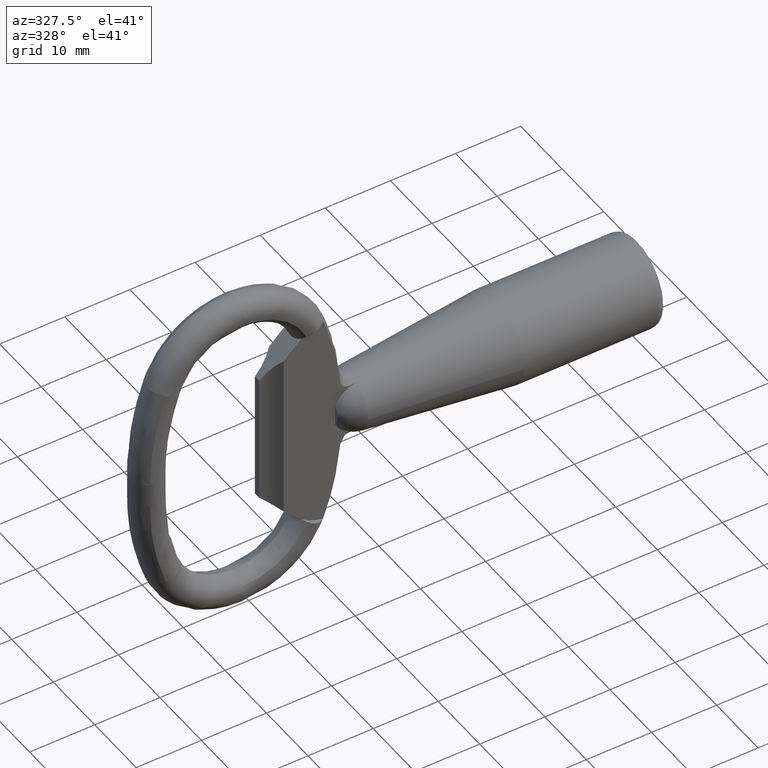
[diagram: clean part render]
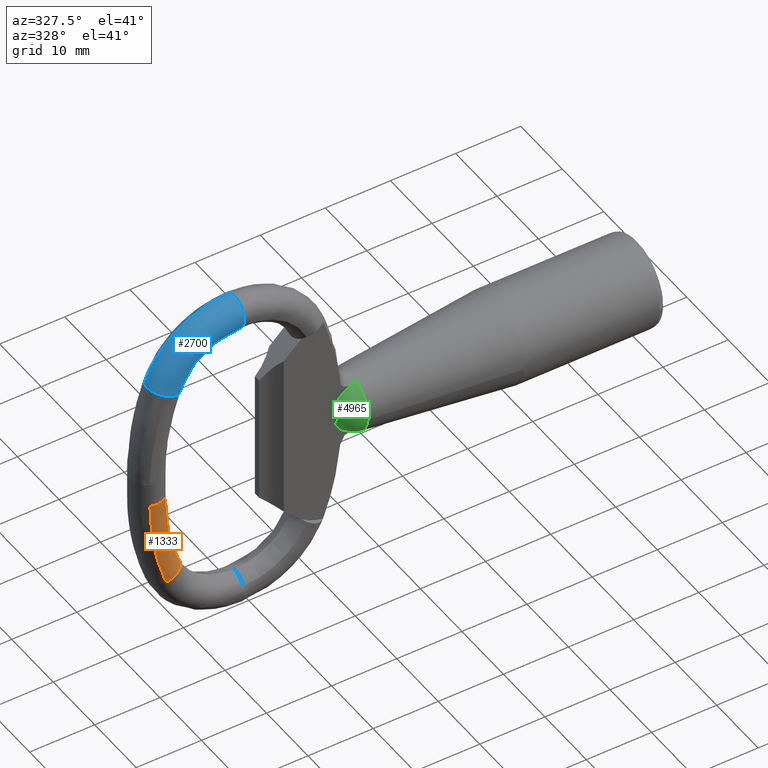
[diagram: same view with three faces highlighted in distinct colors, each labeled with its STEP entity id]
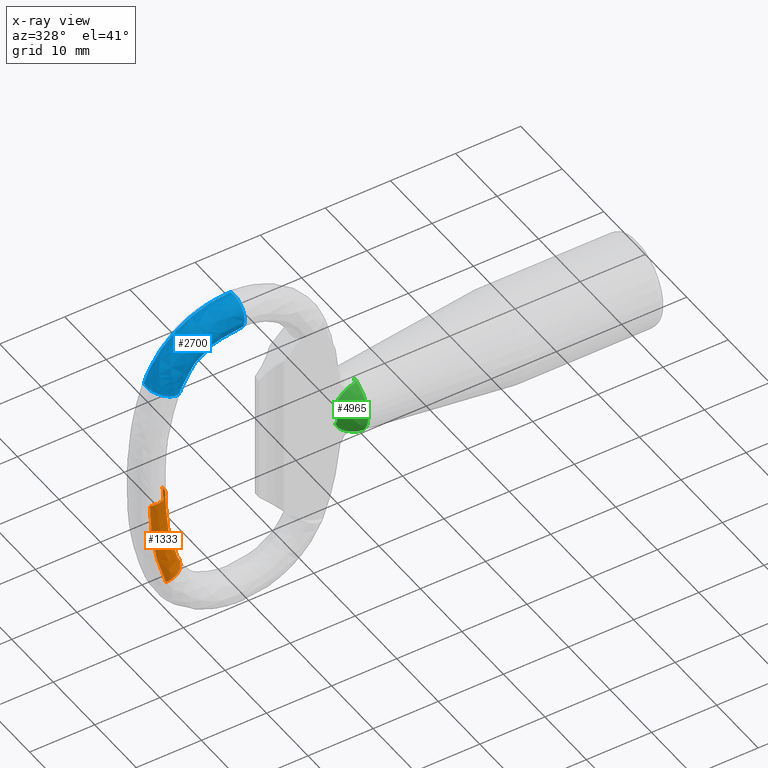
[diagram: x-ray of the same camera — body ghosted, the three highlighted faces saturated]
A machine part, auxiliary view with three faces highlighted in distinct colors.
The next image is the same camera in x-ray (body ghosted, the three faces saturated) — at least one of them is partly hidden behind the body in this view.
Their STEP definitions:

[orange] entity #1333 — the highlighted face is a freeform B-spline surface patch.
#662=CARTESIAN_POINT('',(-73.221573233807220,0.000142196218092,-1.815167344020813));
#663=VERTEX_POINT('',#662);
#744=CARTESIAN_POINT('',(-76.641295625279412,-2.323098140031212,-1.812587600061643));
#745=VERTEX_POINT('',#744);
#759=CARTESIAN_POINT('',(-73.221573233807220,0.000142196218092,-1.815167344020813));
#760=CARTESIAN_POINT('',(-73.221553152738750,-0.327046156619264,-1.815052596419535));
#761=CARTESIAN_POINT('',(-73.286593438000722,-0.654091015310868,-1.814904322016042));
#762=CARTESIAN_POINT('',(-73.536991452470289,-1.258599446880389,-1.814563068473193));
#763=CARTESIAN_POINT('',(-73.722250660751598,-1.535825171504207,-1.814370223602532));
#764=CARTESIAN_POINT('',(-74.184966023988281,-1.998434400144662,-1.813969164477817));
#765=CARTESIAN_POINT('',(-74.462240120207042,-2.183635887184172,-1.813761108023401));
#766=CARTESIAN_POINT('',(-75.066828612683295,-2.433917851398153,-1.813361300932948));
#767=CARTESIAN_POINT('',(-75.393905129186109,-2.498899853307246,-1.813169707603927));
#768=CARTESIAN_POINT('',(-76.035225358442133,-2.498754364310913,-1.812838778425119));
#769=CARTESIAN_POINT('',(-76.349221373114545,-2.438731116883450,-1.812697780149175));
#770=CARTESIAN_POINT('',(-76.641295625279412,-2.323098140031212,-1.812587600061643));
#771=B_SPLINE_CURVE_WITH_KNOTS('',3,(#759,#760,#761,#762,#763,#764,#765,#766,#767,#768,#769,#770),.UNSPECIFIED.,.F.,.U.,(4,2,2,2,2,4),(0.0,0.062500000000000,0.125000000000000,0.187500000000000,0.250000000000000,0.309998108052865),.UNSPECIFIED.);
#772=EDGE_CURVE('',#663,#745,#771,.T.);
#1071=CARTESIAN_POINT('',(-74.188834033885612,-2.321964018835938,-15.938751157331700));
#1072=VERTEX_POINT('',#1071);
#1109=CARTESIAN_POINT('',(-76.641295625279412,-2.323098140031212,-1.812587600061643));
#1110=CARTESIAN_POINT('',(-76.646071979667525,-2.322910937102904,-4.215409465163024));
#1111=CARTESIAN_POINT('',(-76.441392446642368,-2.322720975272844,-6.617273427171035));
#1112=CARTESIAN_POINT('',(-75.825060925953579,-2.322435994940900,-10.166861376582910));
#1113=CARTESIAN_POINT('',(-75.568097166964847,-2.322340985294293,-11.341322451804929));
#1114=CARTESIAN_POINT('',(-75.106812080392203,-2.322198993462711,-13.083143939059170));
#1115=CARTESIAN_POINT('',(-74.940415719751840,-2.322151749883114,-13.660441292125110));
#1116=CARTESIAN_POINT('',(-74.583020345954083,-2.322057621820224,-14.806157932140650));
#1117=CARTESIAN_POINT('',(-74.389820627445175,-2.322010219713301,-15.380836828403870));
#1118=CARTESIAN_POINT('',(-74.188834033885612,-2.321964018835938,-15.938751157331700));
#1119=B_SPLINE_CURVE_WITH_KNOTS('',3,(#1109,#1110,#1111,#1112,#1113,#1114,#1115,#1116,#1117,#1118),.UNSPECIFIED.,.F.,.U.,(4,2,2,2,4),(0.000131749567722,0.500000000000000,0.750000000000000,0.875000000000000,0.999734955699139),.UNSPECIFIED.);
#1120=EDGE_CURVE('',#745,#1072,#1119,.T.);
#1126=CARTESIAN_POINT('',(-70.967196743024346,0.000142196218100,-14.793024563418509));
#1127=VERTEX_POINT('',#1126);
#1128=CARTESIAN_POINT('',(-73.221573233807220,0.000142196218092,-1.815167344020813));
#1129=CARTESIAN_POINT('',(-73.226126387815469,0.000142196218093,-4.020711638627648));
#1130=CARTESIAN_POINT('',(-73.038407169322113,0.000142196218094,-6.225391293779669));
#1131=CARTESIAN_POINT('',(-72.472941120391738,0.000142196218097,-9.483281642693365));
#1132=CARTESIAN_POINT('',(-72.237217136536856,0.000142196218097,-10.561040273463901));
#1133=CARTESIAN_POINT('',(-71.814049906480548,0.000142196218098,-12.159446621500249));
#1134=CARTESIAN_POINT('',(-71.661402097687358,0.000142196218099,-12.689211861246189));
#1135=CARTESIAN_POINT('',(-71.333185976781436,0.000142196218099,-13.741711927465699));
#1136=CARTESIAN_POINT('',(-71.163759400576282,0.000142196218100,-14.247388677867081));
#1137=CARTESIAN_POINT('',(-70.969561065313101,0.000142196218100,-14.786461489695100));
#1138=CARTESIAN_POINT('',(-70.968381379361190,0.000142196218100,-14.789736158838590));
#1139=CARTESIAN_POINT('',(-70.967196743024346,0.000142196218100,-14.793024563418509));
#1140=B_SPLINE_CURVE_WITH_KNOTS('',3,(#1128,#1129,#1130,#1131,#1132,#1133,#1134,#1135,#1136,#1137,#1138,#1139),.UNSPECIFIED.,.F.,.U.,(4,2,2,2,2,4),(0.0,0.500000000000000,0.750000000000000,0.875000000000000,1.0,1.000760378277433),.UNSPECIFIED.);
#1141=EDGE_CURVE('',#663,#1127,#1140,.T.);
#1214=CARTESIAN_POINT('',(-73.221433752144890,0.024488762410833,-1.748899092751620));
#1215=CARTESIAN_POINT('',(-73.214783346528648,-0.638175434561594,-1.748924867648215));
#1216=CARTESIAN_POINT('',(-73.485117794644154,-1.299044300655562,-1.747877135697972));
#1217=CARTESIAN_POINT('',(-74.416298070383135,-2.230353757780580,-1.744268171568242));
#1218=CARTESIAN_POINT('',(-75.387765560833770,-2.632443454243487,-1.740503066767900));
#1219=CARTESIAN_POINT('',(-76.365397954425347,-2.434452093748630,-1.736714068726906));
#1220=CARTESIAN_POINT('',(-76.663316484398379,-2.312994298821531,-1.735559429484381));
#1221=CARTESIAN_POINT('',(-73.230027772626912,0.024488762410833,-3.976976860474864));
#1222=CARTESIAN_POINT('',(-73.223375863576891,-0.638175434561594,-3.976612856484526));
#1223=CARTESIAN_POINT('',(-73.493771425249562,-1.299044300655562,-3.991409370188821));
#1224=CARTESIAN_POINT('',(-74.425162209681886,-2.230353757780580,-4.042376687918152));
#1225=CARTESIAN_POINT('',(-75.396849316455459,-2.632443454243487,-4.095549090231831));
#1226=CARTESIAN_POINT('',(-76.374702719950918,-2.434452093748630,-4.149058922995716));
#1227=CARTESIAN_POINT('',(-76.672688599329049,-2.312994298821531,-4.165365226694084));
#1228=CARTESIAN_POINT('',(-72.902956324126933,0.024488762410833,-7.857981023449581));
#1229=CARTESIAN_POINT('',(-72.896361632803291,-0.638175434561593,-7.856938078398687));
#1230=CARTESIAN_POINT('',(-73.164431332960035,-1.299044300655562,-7.899333082706133));
#1231=CARTESIAN_POINT('',(-74.087810573128309,-2.230353757780580,-8.045364755981645));
#1232=CARTESIAN_POINT('',(-75.051139518715630,-2.632443454243485,-8.197714442569660));
#1233=CARTESIAN_POINT('',(-76.020581720517058,-2.434452093748630,-8.351030935628844));
#1234=CARTESIAN_POINT('',(-76.316004414717185,-2.312994298821531,-8.397751793626057));
#1235=CARTESIAN_POINT('',(-71.989636281303362,0.024488762410833,-11.637387806123749));
#1236=CARTESIAN_POINT('',(-71.983201365762881,-0.638175434561594,-11.635683693410639));
#1237=CARTESIAN_POINT('',(-72.244776289412428,-1.299044300655562,-11.704954711812830));
#1238=CARTESIAN_POINT('',(-73.145783953164852,-2.230353757780580,-11.943562134831909));
#1239=CARTESIAN_POINT('',(-74.085773423297255,-2.632443454243490,-12.192492831154921));
#1240=CARTESIAN_POINT('',(-75.031728037998803,-2.434452093748630,-12.443003234104680));
#1241=CARTESIAN_POINT('',(-75.319993249014757,-2.312994298821530,-12.519342450642981));
#1242=CARTESIAN_POINT('',(-71.333177390968274,0.024488762410833,-13.741922713657370));
#1243=CARTESIAN_POINT('',(-71.326857316040460,-0.638175434561594,-13.739850434587710));
#1244=CARTESIAN_POINT('',(-71.583764047185198,-1.299044300655562,-13.824087164039140));
#1245=CARTESIAN_POINT('',(-72.468691892748282,-2.230353757780580,-14.114244713340490));
#1246=CARTESIAN_POINT('',(-73.391905856520395,-2.632443454243488,-14.416955835557250));
#1247=CARTESIAN_POINT('',(-74.320978508027324,-2.434452093748630,-14.721587953346511));
#1248=CARTESIAN_POINT('',(-74.604099198777021,-2.312994298821531,-14.814419935295490));
#1249=CARTESIAN_POINT('',(-71.163759401671598,0.024488762410833,-14.247500910854059));
#1250=CARTESIAN_POINT('',(-71.157486386195501,-0.638175434561594,-14.245291836759440));
#1251=CARTESIAN_POINT('',(-71.412480182756397,-1.299044300655562,-14.335089190586430));
#1252=CARTESIAN_POINT('',(-72.290818831217138,-2.230353757780580,-14.644400583496299));
#1253=CARTESIAN_POINT('',(-73.207158518406644,-2.632443454243487,-14.967094234194080));
#1254=CARTESIAN_POINT('',(-74.129313269370527,-2.434452093748630,-15.291835688984230));
#1255=CARTESIAN_POINT('',(-74.410325835666143,-2.312994298821531,-15.390795684036069));
#1256=CARTESIAN_POINT('',(-70.960288810026100,0.024488762410833,-14.812196288288339));
#1257=CARTESIAN_POINT('',(-70.954033025213590,-0.638175434561594,-14.809939392686770));
#1258=CARTESIAN_POINT('',(-71.208326407060937,-1.299044300655562,-14.901680658124009));
#1259=CARTESIAN_POINT('',(-72.084252442675748,-2.230353757780580,-15.217687949988470));
#1260=CARTESIAN_POINT('',(-72.998075136100681,-2.632443454243487,-15.547367195555021));
#1261=CARTESIAN_POINT('',(-73.917696920535491,-2.434452093748630,-15.879138575583530));
#1262=CARTESIAN_POINT('',(-74.197937603992969,-2.312994298821531,-15.980240832907690));
#1263=CARTESIAN_POINT('',(-70.949405984935041,0.024488762410833,-14.842399036246640));
#1264=CARTESIAN_POINT('',(-70.943149923978197,-0.638175434561594,-14.840142907014449));
#1265=CARTESIAN_POINT('',(-71.197454530905176,-1.299044300655562,-14.931853020059609));
#1266=CARTESIAN_POINT('',(-72.073419231857784,-2.230353757780580,-15.247753005980581));
#1267=CARTESIAN_POINT('',(-72.987282263463953,-2.632443454243487,-15.577320303046490));
#1268=CARTESIAN_POINT('',(-73.906944642064857,-2.434452093748630,-15.908979024152639));
#1269=CARTESIAN_POINT('',(-74.187197695973992,-2.312994298821531,-16.010046950392059));
#1270=CARTESIAN_POINT('',(-70.938484173272016,0.024488762410833,-14.872709834854479));
#1271=CARTESIAN_POINT('',(-70.932227732589737,-0.638175434561594,-14.870454759482360));
#1272=CARTESIAN_POINT('',(-71.186547775096074,-1.299044300655562,-14.962122033835071));
#1273=CARTESIAN_POINT('',(-72.062565644659244,-2.230353757780580,-15.277874459777310));
#1274=CARTESIAN_POINT('',(-72.976484145198711,-2.632443454243487,-15.607287812729471));
#1275=CARTESIAN_POINT('',(-73.896202344737091,-2.434452093748630,-15.938791612797271));
#1276=CARTESIAN_POINT('',(-74.176472409223820,-2.312994298821531,-16.039812329218051));
#1277=B_SPLINE_SURFACE_WITH_KNOTS('',3,3,((#1214,#1221,#1228,#1235,#1242,#1249,#1256,#1263,#1270),(#1215,#1222,#1229,#1236,#1243,#1250,#1257,#1264,#1271),(#1216,#1223,#1230,#1237,#1244,#1251,#1258,#1265,#1272),(#1217,#1224,#1231,#1238,#1245,#1252,#1259,#1266,#1273),(#1218,#1225,#1232,#1239,#1246,#1253,#1260,#1267,#1274),(#1219,#1226,#1233,#1240,#1247,#1254,#1261,#1268,#1275),(#1220,#1227,#1234,#1241,#1248,#1255,#1262,#1269,#1276)),.UNSPECIFIED.,.F.,.F.,.U.,(4,2,1,4),(4,1,2,2,4),(0.0,1.988649870796194,3.952942513368898,4.920160210028672),(0.0,7.315686746573598,12.745936810321229,14.556020164903771,14.653980326032730),.UNSPECIFIED.);
#1278=CARTESIAN_POINT('',(-73.322634229001395,-2.499778089908740,-15.630654771570500));
#1279=VERTEX_POINT('',#1278);
#1280=CARTESIAN_POINT('',(-73.322634229001395,-2.499778089908740,-15.630654771570500));
#1281=CARTESIAN_POINT('',(-73.360990128078313,-2.499778089908709,-15.644295116526081));
#1282=CARTESIAN_POINT('',(-73.399010263830334,-2.498757019131328,-15.657815794210730));
#1283=CARTESIAN_POINT('',(-73.476660864998209,-2.494557823582392,-15.685431125666430));
#1284=CARTESIAN_POINT('',(-73.515268752742912,-2.491414627076931,-15.699161823997709));
#1285=CARTESIAN_POINT('',(-73.630463021191460,-2.478963927151735,-15.740131126294321));
#1286=CARTESIAN_POINT('',(-73.782381025579511,-2.454326066014358,-15.794164182978820));
#1287=CARTESIAN_POINT('',(-73.931090838125527,-2.414288947416001,-15.847061699993921));
#1288=CARTESIAN_POINT('',(-74.066602516647876,-2.370360762652474,-15.895267034520030));
#1289=CARTESIAN_POINT('',(-74.128080431998626,-2.347524110515261,-15.917137451895860));
#1290=CARTESIAN_POINT('',(-74.188834033885612,-2.321964018835938,-15.938751157331700));
#1291=B_SPLINE_CURVE_WITH_KNOTS('',3,(#1280,#1281,#1282,#1283,#1284,#1285,#1286,#1287,#1288,#1289,#1290),.UNSPECIFIED.,.F.,.U.,(4,2,2,1,2,4),(0.0,0.015625000000003,0.031250000000005,0.062500000000006,0.093750000000006,0.120070264368605),.UNSPECIFIED.);
#1292=EDGE_CURVE('',#1279,#1072,#1291,.T.);
#1293=ORIENTED_EDGE('',*,*,#1292,.F.);
#1294=CARTESIAN_POINT('',(-73.322634229001395,-2.499778089908740,-15.630654771570500));
#1295=CARTESIAN_POINT('',(-73.284297391070709,-2.499778089908772,-15.617021505621921));
#1296=CARTESIAN_POINT('',(-73.246296415248523,-2.498758027176683,-15.603507675252430));
#1297=CARTESIAN_POINT('',(-73.168686080485202,-2.494563161259088,-15.575908059611571));
#1298=CARTESIAN_POINT('',(-73.130096411854936,-2.491423125775564,-15.562184891023980));
#1299=CARTESIAN_POINT('',(-73.014951408268900,-2.478984039157490,-15.521237303527061));
#1300=CARTESIAN_POINT('',(-72.863084754401370,-2.454367273462238,-15.467230883847231));
#1301=CARTESIAN_POINT('',(-72.714400208375466,-2.414355177750878,-15.414356140234791));
#1302=CARTESIAN_POINT('',(-72.567297656535558,-2.366689250207930,-15.362044011794620));
#1303=CARTESIAN_POINT('',(-72.494356149642798,-2.338949567050173,-15.336104807512569));
#1304=CARTESIAN_POINT('',(-72.279151670409789,-2.244399706791299,-15.259574586963360));
#1305=CARTESIAN_POINT('',(-72.143523022240274,-2.167832766040688,-15.211342890653000));
#1306=CARTESIAN_POINT('',(-71.951654624189757,-2.033004466085784,-15.143111520506899));
#1307=CARTESIAN_POINT('',(-71.889645341042041,-1.984701407963205,-15.121060073069730));
#1308=CARTESIAN_POINT('',(-71.769711498894068,-1.881044999673920,-15.078409790565461));
#1309=CARTESIAN_POINT('',(-71.711730748467545,-1.825552395692154,-15.057790973138120));
#1310=CARTESIAN_POINT('',(-71.548200221480982,-1.652019706311587,-14.999637112357799));
#1311=CARTESIAN_POINT('',(-71.451503615721421,-1.525878854423695,-14.965250414770241));
#1312=CARTESIAN_POINT('',(-71.345147935723261,-1.355891824595532,-14.927428837565691));
#1313=CARTESIAN_POINT('',(-71.324610964226295,-1.321271736889153,-14.920125602840191));
#1314=CARTESIAN_POINT('',(-71.285016728307127,-1.250776547848104,-14.906045340430330));
#1315=CARTESIAN_POINT('',(-71.265911501375868,-1.214802784274633,-14.899251256616971));
#1316=CARTESIAN_POINT('',(-71.211260844102611,-1.105796910093541,-14.879816727666110));
#1317=CARTESIAN_POINT('',(-71.178392060698982,-1.031782615019602,-14.868128138395940));
#1318=CARTESIAN_POINT('',(-71.090122093790001,-0.805843749751452,-14.836738137524859));
#1319=CARTESIAN_POINT('',(-71.044926485130858,-0.650072503744302,-14.820665975228939));
#1320=CARTESIAN_POINT('',(-70.998571857680602,-0.408334949874689,-14.804181653014860));
#1321=CARTESIAN_POINT('',(-70.986805605181317,-0.326620049008372,-14.799997417841981));
#1322=CARTESIAN_POINT('',(-70.971172993969404,-0.163548613929211,-14.794438254535971));
#1323=CARTESIAN_POINT('',(-70.967196721437219,-0.081879842385369,-14.793024239583501));
#1324=CARTESIAN_POINT('',(-70.967196743024346,0.000142196218100,-14.793024563418509));
#1325=B_SPLINE_CURVE_WITH_KNOTS('',3,(#1294,#1295,#1296,#1297,#1298,#1299,#1300,#1301,#1302,#1303,#1304,#1305,#1306,#1307,#1308,#1309,#1310,#1311,#1312,#1313,#1314,#1315,#1316,#1317,#1318,#1319,#1320,#1321,#1322,#1323,#1324),.UNSPECIFIED.,.F.,.U.,(4,2,2,1,2,2,2,2,2,2,2,2,2,2,2,4),(0.0,0.015625000000003,0.031250000000006,0.062500000000007,0.093750000000008,0.125000000000009,0.187500000000011,0.218750000000009,0.250000000000008,0.312500000000009,0.328125000000008,0.343750000000007,0.375000000000005,0.437500000000003,0.468750000000002,0.499813095686117),.UNSPECIFIED.);
#1326=EDGE_CURVE('',#1279,#1127,#1325,.T.);
#1327=ORIENTED_EDGE('',*,*,#1326,.T.);
#1328=ORIENTED_EDGE('',*,*,#1141,.F.);
#1329=ORIENTED_EDGE('',*,*,#772,.T.);
#1330=ORIENTED_EDGE('',*,*,#1120,.T.);
#1331=EDGE_LOOP('',(#1293,#1327,#1328,#1329,#1330));
#1332=FACE_OUTER_BOUND('',#1331,.T.);
#1333=ADVANCED_FACE('',(#1332),#1277,.T.);

[blue] entity #2700 — the highlighted face is a freeform B-spline surface patch.
#1954=CARTESIAN_POINT('',(-74.188834034406369,-2.321964018619308,15.938751157498540));
#1955=VERTEX_POINT('',#1954);
#1956=CARTESIAN_POINT('',(-75.510402069683423,0.919496679087487,16.409074648312330));
#1957=VERTEX_POINT('',#1956);
#1958=CARTESIAN_POINT('',(-74.188834034406369,-2.321964018619308,15.938751157498540));
#1959=CARTESIAN_POINT('',(-74.200213062763211,-2.317176657799637,15.942799361402590));
#1960=CARTESIAN_POINT('',(-74.211566681357809,-2.312293756095363,15.946838559549830));
#1961=CARTESIAN_POINT('',(-74.366493473520094,-2.244200481516636,16.001956253672908));
#1962=CARTESIAN_POINT('',(-74.502198509573631,-2.167541451701176,16.050240936260241));
#1963=CARTESIAN_POINT('',(-74.694118554646920,-2.032587922762193,16.118533714185411));
#1964=CARTESIAN_POINT('',(-74.756134408438527,-1.984245185622227,16.140602561381101));
#1965=CARTESIAN_POINT('',(-74.876061934382918,-1.880518421258052,16.183281737607050));
#1966=CARTESIAN_POINT('',(-74.934063310973002,-1.824963996437289,16.203924005377011));
#1967=CARTESIAN_POINT('',(-75.097618456776772,-1.651255482156781,16.262134582462469));
#1968=CARTESIAN_POINT('',(-75.194271604216922,-1.525036168059545,16.296537633911282));
#1969=CARTESIAN_POINT('',(-75.321788566314268,-1.321021705994065,16.341929284658558));
#1970=CARTESIAN_POINT('',(-75.361450859491285,-1.250357018196201,16.356048244091031));
#1971=CARTESIAN_POINT('',(-75.434353732818337,-1.104788210315529,16.382000916563179));
#1972=CARTESIAN_POINT('',(-75.467222615983403,-1.030673853069630,16.393702304472171));
#1973=CARTESIAN_POINT('',(-75.555455172659236,-0.804479532351539,16.425113980853681));
#1974=CARTESIAN_POINT('',(-75.600575542346348,-0.648596870785275,16.441178309855790));
#1975=CARTESIAN_POINT('',(-75.639086546308519,-0.447102128216039,16.454889698254330));
#1976=CARTESIAN_POINT('',(-75.645893590113317,-0.406371641699927,16.457313284473710));
#1977=CARTESIAN_POINT('',(-75.657526329633598,-0.325065162638635,16.461455033976549));
#1978=CARTESIAN_POINT('',(-75.662370929180639,-0.284413890767496,16.463179927677860));
#1979=CARTESIAN_POINT('',(-75.674008506168391,-0.162465939497835,16.467323435393471));
#1980=CARTESIAN_POINT('',(-75.681818428694712,0.000115723836629,16.470104152731281));
#1981=CARTESIAN_POINT('',(-75.674012722318452,0.162665768162903,16.467324937577700));
#1982=CARTESIAN_POINT('',(-75.662385017049019,0.284566611224578,16.463184945385841));
#1983=CARTESIAN_POINT('',(-75.657544826423020,0.325198273061684,16.461461621702728));
#1984=CARTESIAN_POINT('',(-75.645924305770478,0.406457668303320,16.457324223088399));
#1985=CARTESIAN_POINT('',(-75.639121588828559,0.447185390087623,16.454902177610499));
#1986=CARTESIAN_POINT('',(-75.603045079248503,0.636012585503375,16.442057563130341));
#1987=CARTESIAN_POINT('',(-75.562537398154490,0.779946204968252,16.427635491130001));
#1988=CARTESIAN_POINT('',(-75.510402069683423,0.919496679087487,16.409074648312330));
#1989=B_SPLINE_CURVE_WITH_KNOTS('',3,(#1958,#1959,#1960,#1961,#1962,#1963,#1964,#1965,#1966,#1967,#1968,#1969,#1970,#1971,#1972,#1973,#1974,#1975,#1976,#1977,#1978,#1979,#1980,#1981,#1982,#1983,#1984,#1985,#1986,#1987,#1988),.UNSPECIFIED.,.F.,.U.,(4,2,2,2,2,2,2,2,2,2,2,1,2,2,2,4),(0.120070264517867,0.125000000000003,0.187500000000004,0.218750000000005,0.250000000000005,0.312500000000003,0.343750000000003,0.375000000000003,0.437500000000004,0.453125000000004,0.468750000000004,0.500000000000004,0.531250000000004,0.546875000000005,0.562500000000005,0.620051507565362),.UNSPECIFIED.);
#1990=EDGE_CURVE('',#1955,#1957,#1989,.T.);
#2026=CARTESIAN_POINT('',(-70.967196843178243,0.000142196218096,14.793024286142870));
#2027=VERTEX_POINT('',#2026);
#2194=CARTESIAN_POINT('',(-73.322634229002901,-2.499778089908740,15.630654771560151));
#2195=VERTEX_POINT('',#2194);
#2196=CARTESIAN_POINT('',(-73.322634229002901,-2.499778089908740,15.630654771560151));
#2197=CARTESIAN_POINT('',(-73.360990128078910,-2.499778089908745,15.644295116518300));
#2198=CARTESIAN_POINT('',(-73.399010263832480,-2.498757019131367,15.657815794201181));
#2199=CARTESIAN_POINT('',(-73.476660864999545,-2.494557823582487,15.685431125658390));
#2200=CARTESIAN_POINT('',(-73.515268752746678,-2.491414627077058,15.699161823982470));
#2201=CARTESIAN_POINT('',(-73.630463021194302,-2.478963927151984,15.740131126280589));
#2202=CARTESIAN_POINT('',(-73.782381025581515,-2.454326066014830,15.794164182965750));
#2203=CARTESIAN_POINT('',(-73.931090838123112,-2.414288947416786,15.847061699991860));
#2204=CARTESIAN_POINT('',(-74.066602516996312,-2.370360762539725,15.895267034642860));
#2205=CARTESIAN_POINT('',(-74.128080432691590,-2.347524110257756,15.917137452143720));
#2206=CARTESIAN_POINT('',(-74.188834034406369,-2.321964018619308,15.938751157498540));
#2207=B_SPLINE_CURVE_WITH_KNOTS('',3,(#2196,#2197,#2198,#2199,#2200,#2201,#2202,#2203,#2204,#2205,#2206),.UNSPECIFIED.,.F.,.U.,(4,2,2,1,2,4),(0.0,0.015625000000000,0.031250000000001,0.062500000000002,0.093750000000002,0.120070264517866),.UNSPECIFIED.);
#2208=EDGE_CURVE('',#2195,#1955,#2207,.T.);
#2213=CARTESIAN_POINT('',(-73.322634229002901,-2.499778089908740,15.630654771560151));
#2214=CARTESIAN_POINT('',(-73.284297391071576,-2.499778089908737,15.617021505613449));
#2215=CARTESIAN_POINT('',(-73.246296415248054,-2.498758027176586,15.603507675245270));
#2216=CARTESIAN_POINT('',(-73.168686080484477,-2.494563161258915,15.575908059605929));
#2217=CARTESIAN_POINT('',(-73.130096411856059,-2.491423125775360,15.562184891013640));
#2218=CARTESIAN_POINT('',(-73.014951408270264,-2.478984039157207,15.521237303517101));
#2219=CARTESIAN_POINT('',(-72.863084754397818,-2.454367273461877,15.467230883851791));
#2220=CARTESIAN_POINT('',(-72.714400208375110,-2.414355177750410,15.414356140230330));
#2221=CARTESIAN_POINT('',(-72.567297656535217,-2.366689250207282,15.362044011789710));
#2222=CARTESIAN_POINT('',(-72.494356149641789,-2.338949567049239,15.336104807507970));
#2223=CARTESIAN_POINT('',(-72.279151670409149,-2.244399706790502,15.259574586960420));
#2224=CARTESIAN_POINT('',(-72.143523022239307,-2.167832766039951,15.211342890651791));
#2225=CARTESIAN_POINT('',(-71.951654624189288,-2.033004466084855,15.143111520504061));
#2226=CARTESIAN_POINT('',(-71.889645341040406,-1.984701407962142,15.121060073070030));
#2227=CARTESIAN_POINT('',(-71.769711498893429,-1.881044999672480,15.078409790562270));
#2228=CARTESIAN_POINT('',(-71.711730748465868,-1.825552395690847,15.057790973138630));
#2229=CARTESIAN_POINT('',(-71.548200221480997,-1.652019706310654,14.999637112355479));
#2230=CARTESIAN_POINT('',(-71.451503615726438,-1.525878854422825,14.965250414754070));
#2231=CARTESIAN_POINT('',(-71.345147935727681,-1.355891824594375,14.927428837550840));
#2232=CARTESIAN_POINT('',(-71.324610964230672,-1.321271736887913,14.920125602825600));
#2233=CARTESIAN_POINT('',(-71.285016728311760,-1.250776547846671,14.906045340414829));
#2234=CARTESIAN_POINT('',(-71.265911501379904,-1.214802784273069,14.899251256603041));
#2235=CARTESIAN_POINT('',(-71.211260844106135,-1.105796910092299,14.879816727654260));
#2236=CARTESIAN_POINT('',(-71.178392060704212,-1.031782615018512,14.868128138379710));
#2237=CARTESIAN_POINT('',(-71.090122093795586,-0.805843749750617,14.836738137508160));
#2238=CARTESIAN_POINT('',(-71.044926485136386,-0.650072503743372,14.820665975212419));
#2239=CARTESIAN_POINT('',(-70.998571857685036,-0.408334949873096,14.804181653001409));
#2240=CARTESIAN_POINT('',(-70.986805605185253,-0.326620049007053,14.799997417830239));
#2241=CARTESIAN_POINT('',(-70.971172993973894,-0.163548613928447,14.794438254523280));
#2242=CARTESIAN_POINT('',(-70.967196721441383,-0.081879842385013,14.793024239571810));
#2243=CARTESIAN_POINT('',(-70.967196843178243,0.000142196218096,14.793024286142870));
#2244=B_SPLINE_CURVE_WITH_KNOTS('',3,(#2213,#2214,#2215,#2216,#2217,#2218,#2219,#2220,#2221,#2222,#2223,#2224,#2225,#2226,#2227,#2228,#2229,#2230,#2231,#2232,#2233,#2234,#2235,#2236,#2237,#2238,#2239,#2240,#2241,#2242,#2243),.UNSPECIFIED.,.F.,.U.,(4,2,2,1,2,2,2,2,2,2,2,2,2,2,2,4),(0.0,0.015625000000000,0.031249999999999,0.062499999999999,0.093749999999998,0.124999999999997,0.187499999999996,0.218749999999997,0.249999999999999,0.312500000000002,0.328125000000002,0.343750000000002,0.375000000000000,0.437499999999996,0.468749999999993,0.499813095685978),.UNSPECIFIED.);
#2245=EDGE_CURVE('',#2195,#2027,#2244,.T.);
#2412=CARTESIAN_POINT('',(-62.221443634784507,0.919495983686714,25.822106288389168));
#2413=VERTEX_POINT('',#2412);
#2414=CARTESIAN_POINT('',(-62.221443634784507,0.919495983686714,25.822106288389168));
#2415=CARTESIAN_POINT('',(-65.119879351758868,0.919496084684918,25.822106353500072));
#2416=CARTESIAN_POINT('',(-68.005796070394638,0.919496207955377,24.902081403963798));
#2417=CARTESIAN_POINT('',(-71.549214519022456,0.919496393426834,22.390244626996552));
#2418=CARTESIAN_POINT('',(-72.599306337535523,0.919496455189974,21.370416008006270));
#2419=CARTESIAN_POINT('',(-73.906496129608797,0.919496543546087,19.636145244424359));
#2420=CARTESIAN_POINT('',(-74.297608103372255,0.919496572275148,19.024356151243680));
#2421=CARTESIAN_POINT('',(-74.810345068751303,0.919496613771090,18.067027708345901));
#2422=CARTESIAN_POINT('',(-74.968957123291204,0.919496627337355,17.741318516452029));
#2423=CARTESIAN_POINT('',(-75.187744290769103,0.919496647230752,17.244221169004280));
#2424=CARTESIAN_POINT('',(-75.257486209267896,0.919496653785939,17.077099447846440));
#2425=CARTESIAN_POINT('',(-75.389153651846357,0.919496666604725,16.743634694775441));
#2426=CARTESIAN_POINT('',(-75.455951681095641,0.919496673370708,16.563816631723629));
#2427=CARTESIAN_POINT('',(-75.510402069683423,0.919496679087487,16.409074648312330));
#2428=B_SPLINE_CURVE_WITH_KNOTS('',3,(#2414,#2415,#2416,#2417,#2418,#2419,#2420,#2421,#2422,#2423,#2424,#2425,#2426,#2427),.UNSPECIFIED.,.F.,.U.,(4,2,2,2,2,2,4),(0.500000000000000,0.750000000000000,0.875000000000000,0.937500000000000,0.968750000000000,0.984375000000000,0.999684308566009),.UNSPECIFIED.);
#2429=EDGE_CURVE('',#2413,#1957,#2428,.T.);
#2431=CARTESIAN_POINT('',(-62.221443634784507,0.000142196218092,21.000079713873198));
#2432=VERTEX_POINT('',#2431);
#2446=CARTESIAN_POINT('',(-62.221443634784507,0.000142196218092,21.000079713873198));
#2447=CARTESIAN_POINT('',(-64.127730670370596,0.000142196218092,21.000079713873198));
#2448=CARTESIAN_POINT('',(-66.025783991829698,0.000142196218092,20.394983696863150));
#2449=CARTESIAN_POINT('',(-68.356272942612307,0.000142196218092,18.742960704465201));
#2450=CARTESIAN_POINT('',(-69.046913177176805,0.000142196218092,18.072224322274451));
#2451=CARTESIAN_POINT('',(-69.906645471839596,0.000142196218092,16.931602781712549));
#2452=CARTESIAN_POINT('',(-70.163877889613588,0.000142196218092,16.529232038445901));
#2453=CARTESIAN_POINT('',(-70.501102459956002,0.000142196218092,15.899601728728200));
#2454=CARTESIAN_POINT('',(-70.605420824072397,0.000142196218092,15.685384360940050));
#2455=CARTESIAN_POINT('',(-70.749316060908910,0.000142196218092,15.358445828522150));
#2456=CARTESIAN_POINT('',(-70.795184975132202,0.000142196218092,15.248530677087651));
#2457=CARTESIAN_POINT('',(-70.882665740822205,0.000142196218092,15.026974324330149));
#2458=CARTESIAN_POINT('',(-70.918952397589806,0.000142196218092,14.930501118796940));
#2459=CARTESIAN_POINT('',(-70.964866033675094,0.000142196218092,14.799666207560829));
#2460=CARTESIAN_POINT('',(-70.966021945963959,0.000142196218092,14.796372308732920));
#2461=CARTESIAN_POINT('',(-70.967196843178243,0.000142196218096,14.793024286142870));
#2462=B_SPLINE_CURVE_WITH_KNOTS('',3,(#2446,#2447,#2448,#2449,#2450,#2451,#2452,#2453,#2454,#2455,#2456,#2457,#2458,#2459,#2460,#2461),.UNSPECIFIED.,.F.,.U.,(4,2,2,2,2,2,2,4),(0.500000000000000,0.750000000000000,0.875000000000000,0.937500000000000,0.968750000000000,0.984375000000000,1.0,1.000395896295902),.UNSPECIFIED.);
#2463=EDGE_CURVE('',#2432,#2027,#2462,.T.);
#2469=CARTESIAN_POINT('',(-62.221443634784507,0.000142196218092,21.000079713873198));
#2470=CARTESIAN_POINT('',(-62.221443634784507,-0.654335404236587,21.000079713873198));
#2471=CARTESIAN_POINT('',(-62.221443634784507,-1.304782841111802,21.269503863837748));
#2472=CARTESIAN_POINT('',(-62.221443634784507,-2.230353939944210,22.195074962670152));
#2473=CARTESIAN_POINT('',(-62.221443634784507,-2.499778089908740,22.845522399545349));
#2474=CARTESIAN_POINT('',(-62.221443634784507,-2.499778089908740,24.154477600454701));
#2475=CARTESIAN_POINT('',(-62.221443634784507,-2.230353939944210,24.804925037329951));
#2476=CARTESIAN_POINT('',(-62.221443634784507,-1.304782841111800,25.730496136162351));
#2477=CARTESIAN_POINT('',(-62.221443634784507,-0.654335404236586,25.999920286126901));
#2478=CARTESIAN_POINT('',(-62.221443634784507,0.314291444436339,25.999920286126891));
#2479=CARTESIAN_POINT('',(-62.221443634784507,0.627512142965877,25.937844961975060));
#2480=CARTESIAN_POINT('',(-62.221443634784507,0.919496092199420,25.822106245376119));
#2481=CARTESIAN_POINT('',(-64.127730670370596,0.000142196218092,21.000079713873198));
#2482=CARTESIAN_POINT('',(-64.127730670370596,-0.654335404236587,21.000079713873198));
#2483=CARTESIAN_POINT('',(-64.183165612249297,-1.304782841111802,21.269503863837748));
#2484=CARTESIAN_POINT('',(-64.373605036733196,-2.230353939944210,22.195074962670152));
#2485=CARTESIAN_POINT('',(-64.507436825248902,-2.499778089908740,22.845522399545349));
#2486=CARTESIAN_POINT('',(-64.776758842159992,-2.499778089908740,24.154477600454701));
#2487=CARTESIAN_POINT('',(-64.910590630662995,-2.230353939944210,24.804925037329951));
#2488=CARTESIAN_POINT('',(-65.101030055146907,-1.304782841111800,25.730496136162351));
#2489=CARTESIAN_POINT('',(-65.156464997025594,-0.654335404236586,25.999920286126901));
#2490=CARTESIAN_POINT('',(-65.156464997025594,0.314291444436339,25.999920286126891));
#2491=CARTESIAN_POINT('',(-65.143692786416750,0.627512142965877,25.937844961975060));
#2492=CARTESIAN_POINT('',(-65.119879148967286,0.919496092199420,25.822106245376119));
#2493=CARTESIAN_POINT('',(-66.025783991829698,0.000142196218092,20.394983696863150));
#2494=CARTESIAN_POINT('',(-66.025783991829698,-0.654335404236587,20.394983696863150));
#2495=CARTESIAN_POINT('',(-66.136414438664403,-1.304782841111802,20.646811618183602));
#2496=CARTESIAN_POINT('',(-66.516470733780892,-2.230353939944210,21.511933196517550));
#2497=CARTESIAN_POINT('',(-66.783556258936798,-2.499778089908740,22.119899579567601));
#2498=CARTESIAN_POINT('',(-67.321037025961999,-2.499778089908740,23.343366248736050));
#2499=CARTESIAN_POINT('',(-67.588122551134688,-2.230353939944210,23.951332631786102));
#2500=CARTESIAN_POINT('',(-67.968178846251192,-1.304782841111800,24.816454210103249));
#2501=CARTESIAN_POINT('',(-68.078809293085811,-0.654335404236586,25.068282131440501));
#2502=CARTESIAN_POINT('',(-68.078809293085811,0.314291444436339,25.068282131440501));
#2503=CARTESIAN_POINT('',(-68.053320038135112,0.627512142965877,25.010260978364400));
#2504=CARTESIAN_POINT('',(-68.005795620091632,0.919496092199420,24.902081216370629));
#2505=CARTESIAN_POINT('',(-68.356272942612307,0.000142196218092,18.742960704465201));
#2506=CARTESIAN_POINT('',(-68.356272942612307,-0.654335404236587,18.742960704465201));
#2507=CARTESIAN_POINT('',(-68.534674148588991,-1.304782841111802,18.946747697618552));
#2508=CARTESIAN_POINT('',(-69.147547939843093,-2.230353939944210,19.646831009388599));
#2509=CARTESIAN_POINT('',(-69.578246550857500,-2.499778089908740,20.138816332087650));
#2510=CARTESIAN_POINT('',(-70.444980978468990,-2.499778089908740,21.128883646390449));
#2511=CARTESIAN_POINT('',(-70.875679589475084,-2.230353939944210,21.620868969089500));
#2512=CARTESIAN_POINT('',(-71.488553380729101,-1.304782841111800,22.320952280867949));
#2513=CARTESIAN_POINT('',(-71.666954586705799,-0.654335404236586,22.524739274012902));
#2514=CARTESIAN_POINT('',(-71.666954586705799,0.314291444436339,22.524739274012902));
#2515=CARTESIAN_POINT('',(-71.625850948848750,0.627512142965877,22.477786750792308));
#2516=CARTESIAN_POINT('',(-71.549213696316258,0.919496092199420,22.390244319834789));
#2517=CARTESIAN_POINT('',(-69.046913177176805,0.000142196218092,18.072224322274451));
#2518=CARTESIAN_POINT('',(-69.046913177176805,-0.654335404236587,18.072224322274451));
#2519=CARTESIAN_POINT('',(-69.245398242803503,-1.304782841111802,18.256506261008951));
#2520=CARTESIAN_POINT('',(-69.927267482466902,-2.230353939944210,18.889582533321899));
#2521=CARTESIAN_POINT('',(-70.406452819793998,-2.499778089908740,19.334478489123200));
#2522=CARTESIAN_POINT('',(-71.370761546277706,-2.499778089908740,20.229783539446501));
#2523=CARTESIAN_POINT('',(-71.849946883630096,-2.230353939944210,20.674679495247801));
#2524=CARTESIAN_POINT('',(-72.531816123284997,-1.304782841111800,21.307755767560749));
#2525=CARTESIAN_POINT('',(-72.730301188886500,-0.654335404236586,21.492037706299449));
#2526=CARTESIAN_POINT('',(-72.730301188886500,0.314291444436339,21.492037706299449));
#2527=CARTESIAN_POINT('',(-72.684570229771907,0.627512142965877,21.449579147614060));
#2528=CARTESIAN_POINT('',(-72.599305390816781,0.919496092199420,21.370415661027430));
#2529=CARTESIAN_POINT('',(-69.906645471839596,0.000142196218092,16.931602781712549));
#2530=CARTESIAN_POINT('',(-69.906645471839596,-0.654335404236587,16.931602781712549));
#2531=CARTESIAN_POINT('',(-70.130131604385397,-1.304782841111802,17.082715377313651));
#2532=CARTESIAN_POINT('',(-70.897888708960792,-2.230353939944210,17.601842750178051));
#2533=CARTESIAN_POINT('',(-71.437431961173701,-2.499778089908740,17.966660827919551));
#2534=CARTESIAN_POINT('',(-72.523204471079296,-2.499778089908740,18.700817799222701));
#2535=CARTESIAN_POINT('',(-73.062747723279600,-2.230353939944210,19.065635876964201));
#2536=CARTESIAN_POINT('',(-73.830504827859201,-1.304782841111800,19.584763249828651));
#2537=CARTESIAN_POINT('',(-74.053990960417607,-0.654335404236586,19.735875845427600));
#2538=CARTESIAN_POINT('',(-74.053990960417607,0.314291444436339,19.735875845427600));
#2539=CARTESIAN_POINT('',(-74.002499755476151,0.627512142965877,19.701059503401599));
#2540=CARTESIAN_POINT('',(-73.906495005482199,0.919496092199420,19.636144840484651));
#2541=CARTESIAN_POINT('',(-70.163877889613588,0.000142196218092,16.529232038445901));
#2542=CARTESIAN_POINT('',(-70.163877889613588,-0.654335404236587,16.529232038445901));
#2543=CARTESIAN_POINT('',(-70.394844356373099,-1.304782841111802,16.668643668584849));
#2544=CARTESIAN_POINT('',(-71.188299161605315,-2.230353939944210,17.147573919320202));
#2545=CARTESIAN_POINT('',(-71.745901538119000,-2.499778089908740,17.484143367551599));
#2546=CARTESIAN_POINT('',(-72.868016084810691,-2.499778089908740,18.161453023573500));
#2547=CARTESIAN_POINT('',(-73.425618461320198,-2.230353939944210,18.498022471804902));
#2548=CARTESIAN_POINT('',(-74.219073266552400,-1.304782841111800,18.976952722540201));
#2549=CARTESIAN_POINT('',(-74.450039733311897,-0.654335404236586,19.116364352679149));
#2550=CARTESIAN_POINT('',(-74.450039733311897,0.314291444436339,19.116364352679149));
#2551=CARTESIAN_POINT('',(-74.396825059370514,0.627512142965877,19.084243913095140));
#2552=CARTESIAN_POINT('',(-74.297606921561339,0.919496092199420,19.024355728783100));
#2553=CARTESIAN_POINT('',(-70.501102459956002,0.000142196218092,15.899601728728200));
#2554=CARTESIAN_POINT('',(-70.501102459956002,-0.654335404236587,15.899601728728200));
#2555=CARTESIAN_POINT('',(-70.741875437547705,-1.304782841111802,16.020703671515850));
#2556=CARTESIAN_POINT('',(-71.569019216108799,-2.230353939944210,16.436733408538348));
#2557=CARTESIAN_POINT('',(-72.150296604059093,-2.499778089908740,16.729099361247350));
#2558=CARTESIAN_POINT('',(-73.320054553731694,-2.499778089908740,17.317454257694500));
#2559=CARTESIAN_POINT('',(-73.901331941684006,-2.230353939944210,17.609820210403502));
#2560=CARTESIAN_POINT('',(-74.728475720245100,-1.304782841111800,18.025849947426000));
#2561=CARTESIAN_POINT('',(-74.969248697836903,-0.654335404236586,18.146951890213650));
#2562=CARTESIAN_POINT('',(-74.969248697836903,0.314291444436339,18.146951890213650));
#2563=CARTESIAN_POINT('',(-74.913774603799752,0.627512142965877,18.119050002595369));
#2564=CARTESIAN_POINT('',(-74.810343803621805,0.919496092199420,18.067027259133969));
#2565=CARTESIAN_POINT('',(-70.605420824072397,0.000142196218092,15.685384360940050));
#2566=CARTESIAN_POINT('',(-70.605420824072397,-0.654335404236587,15.685384360940050));
#2567=CARTESIAN_POINT('',(-70.849227385975695,-1.304782841111802,15.800256849763850));
#2568=CARTESIAN_POINT('',(-71.686792642968996,-2.230353939944210,16.194886120079850));
#2569=CARTESIAN_POINT('',(-72.275393751315988,-2.499778089908740,16.472212840541602));
#2570=CARTESIAN_POINT('',(-73.459889897126899,-2.499778089908740,17.030302906731599));
#2571=CARTESIAN_POINT('',(-74.048491005475995,-2.230353939944210,17.307629627193400));
#2572=CARTESIAN_POINT('',(-74.886056262469282,-1.304782841111800,17.702258897508852));
#2573=CARTESIAN_POINT('',(-75.129862824372609,-0.654335404236586,17.817131386332651));
#2574=CARTESIAN_POINT('',(-75.129862824372609,0.314291444436339,17.817131386332651));
#2575=CARTESIAN_POINT('',(-75.073689792510081,0.627512142965877,17.790664764907650));
#2576=CARTESIAN_POINT('',(-74.968955830922340,0.919496092199420,17.741318058494279));
#2577=CARTESIAN_POINT('',(-70.749316060908910,0.000142196218092,15.358445828522150));
#2578=CARTESIAN_POINT('',(-70.749316060908910,-0.654335404236587,15.358445828522150));
#2579=CARTESIAN_POINT('',(-70.997307104973700,-1.304782841111802,15.463810925120750));
#2580=CARTESIAN_POINT('',(-71.849247598003117,-2.230353939944210,15.825778804578800));
#2581=CARTESIAN_POINT('',(-72.447950939929399,-2.499778089908740,16.080152649787951));
#2582=CARTESIAN_POINT('',(-73.652776739507118,-2.499778089908740,16.592052534061150));
#2583=CARTESIAN_POINT('',(-74.251480081432305,-2.230353939944210,16.846426379270302));
#2584=CARTESIAN_POINT('',(-75.103420574461708,-1.304782841111800,17.208394258728600));
#2585=CARTESIAN_POINT('',(-75.351411618526598,-0.654335404236586,17.313759355327200));
#2586=CARTESIAN_POINT('',(-75.351411618526598,0.314291444436339,17.313759355327200));
#2587=CARTESIAN_POINT('',(-75.294274481974043,0.627512142965877,17.289483237070879));
#2588=CARTESIAN_POINT('',(-75.187742958456838,0.919496092199420,17.244220698221788));
#2589=CARTESIAN_POINT('',(-70.795184975132202,0.000142196218092,15.248530677087651));
#2590=CARTESIAN_POINT('',(-70.795184975132202,-0.654335404236587,15.248530677087651));
#2591=CARTESIAN_POINT('',(-71.044509889986102,-1.304782841111802,15.350699434458850));
#2592=CARTESIAN_POINT('',(-71.901032720020694,-2.230353939944210,15.701686712469550));
#2593=CARTESIAN_POINT('',(-72.502956310897801,-2.499778089908740,15.948343912165800));
#2594=CARTESIAN_POINT('',(-73.714262513616205,-2.499778089908740,16.444714880949050));
#2595=CARTESIAN_POINT('',(-74.316186104494292,-2.230353939944210,16.691372080645550));
#2596=CARTESIAN_POINT('',(-75.172708934529908,-1.304782841111800,17.042359358656249));
#2597=CARTESIAN_POINT('',(-75.422033849382800,-0.654335404236586,17.144528116027448));
#2598=CARTESIAN_POINT('',(-75.422033849382800,0.314291444436339,17.144528116027448));
#2599=CARTESIAN_POINT('',(-75.364589389000685,0.627512142965877,17.120988434329131));
#2600=CARTESIAN_POINT('',(-75.257484863793650,0.919496092199420,17.077098972837991));
#2601=CARTESIAN_POINT('',(-70.882665740822205,0.000142196218092,15.026974324330149));
#2602=CARTESIAN_POINT('',(-70.882665740822205,-0.654335404236587,15.026974324330149));
#2603=CARTESIAN_POINT('',(-71.134534601613794,-1.304782841111802,15.122700209611549));
#2604=CARTESIAN_POINT('',(-71.999796822077798,-2.230353939944210,15.451553851121799));
#2605=CARTESIAN_POINT('',(-72.607862041741186,-2.499778089908740,15.682656581638501));
#2606=CARTESIAN_POINT('',(-73.831527608928994,-2.499778089908740,16.147725861497950));
#2607=CARTESIAN_POINT('',(-74.439592828591287,-2.230353939944210,16.378828592014401));
#2608=CARTESIAN_POINT('',(-75.304855049054211,-1.304782841111800,16.707682233524650));
#2609=CARTESIAN_POINT('',(-75.556723909846895,-0.654335404236586,16.803408118806050));
#2610=CARTESIAN_POINT('',(-75.556723909846895,0.314291444436339,16.803408118806050));
#2611=CARTESIAN_POINT('',(-75.498693324320271,0.627512142965877,16.781352874837211));
#2612=CARTESIAN_POINT('',(-75.390495975629847,0.919496092199420,16.740231130148679));
#2613=CARTESIAN_POINT('',(-70.918952397589806,0.000142196218092,14.930501118796940));
#2614=CARTESIAN_POINT('',(-70.918952397589806,-0.654335404236587,14.930501118796940));
#2615=CARTESIAN_POINT('',(-71.172604925141101,-1.304782841111802,15.021345655234249));
#2616=CARTESIAN_POINT('',(-72.043994697286990,-2.230353939944210,15.333430067207850));
#2617=CARTESIAN_POINT('',(-72.656366069432906,-2.499778089908740,15.552748179142499));
#2618=CARTESIAN_POINT('',(-73.888697303310892,-2.499778089908740,15.994102187160649));
#2619=CARTESIAN_POINT('',(-74.501068675456693,-2.230353939944210,16.213420299094750));
#2620=CARTESIAN_POINT('',(-75.372458447600508,-1.304782841111800,16.525504711068599));
#2621=CARTESIAN_POINT('',(-75.626110975152898,-0.654335404236586,16.616349247505951));
#2622=CARTESIAN_POINT('',(-75.626110975152898,0.314291444436339,16.616349247505951));
#2623=CARTESIAN_POINT('',(-75.567669432804820,0.627512142965877,16.595418666310788));
#2624=CARTESIAN_POINT('',(-75.458705859922361,0.919496092199420,16.556393842223311));
#2625=CARTESIAN_POINT('',(-70.973470419130578,0.000142196218092,14.775147260614039));
#2626=CARTESIAN_POINT('',(-70.973470419130578,-0.654335404236587,14.775147260614039));
#2627=CARTESIAN_POINT('',(-71.227821455604939,-1.304782841111802,14.864001486397081));
#2628=CARTESIAN_POINT('',(-72.101610862937306,-2.230353939944210,15.169248448871469));
#2629=CARTESIAN_POINT('',(-72.715668584797143,-2.499778089908740,15.383761525831030));
#2630=CARTESIAN_POINT('',(-73.951393415305432,-2.499778089908740,15.815445920035531));
#2631=CARTESIAN_POINT('',(-74.565451137165240,-2.230353939944210,16.029958996995180));
#2632=CARTESIAN_POINT('',(-75.439240544498148,-1.304782841111800,16.335205959469540));
#2633=CARTESIAN_POINT('',(-75.693591580972267,-0.654335404236586,16.424060185252578));
#2634=CARTESIAN_POINT('',(-75.693591580972267,0.314291444436339,16.424060185252578));
#2635=CARTESIAN_POINT('',(-75.634989102168632,0.627512142965877,16.403588171632169));
#2636=CARTESIAN_POINT('',(-75.525725465144973,0.919496092199420,16.365418341429962));
#2637=CARTESIAN_POINT('',(-70.984780934390145,0.000142196218092,14.742915050450410));
#2638=CARTESIAN_POINT('',(-70.984780934390145,-0.654335404236587,14.742915050450410));
#2639=CARTESIAN_POINT('',(-71.239087310663862,-1.304782841111802,14.831896547615530));
#2640=CARTESIAN_POINT('',(-72.112723293772817,-2.230353939944210,15.137580734121061));
#2641=CARTESIAN_POINT('',(-72.726673196370541,-2.499778089908740,15.352401071377320));
#2642=CARTESIAN_POINT('',(-73.962181052261272,-2.499778089908740,15.784703793736551));
#2643=CARTESIAN_POINT('',(-74.576130954859011,-2.230353939944210,15.999524130992860));
#2644=CARTESIAN_POINT('',(-75.449766937968448,-1.304782841111800,16.305208317498440));
#2645=CARTESIAN_POINT('',(-75.704073314241896,-0.654335404236586,16.394189814663509));
#2646=CARTESIAN_POINT('',(-75.704073314241896,0.314291444436339,16.394189814663509));
#2647=CARTESIAN_POINT('',(-75.645481125148507,0.627512142965877,16.373688477716669));
#2648=CARTESIAN_POINT('',(-75.536236673169356,0.919496092199420,16.335463974514958));
#2649=CARTESIAN_POINT('',(-70.996181617149418,0.000142196218092,14.710425458529141));
#2650=CARTESIAN_POINT('',(-70.996181617149418,-0.654335404236587,14.710425458529141));
#2651=CARTESIAN_POINT('',(-71.250433597396935,-1.304782841111802,14.799561959429090));
#2652=CARTESIAN_POINT('',(-72.123882710139199,-2.230353939944210,15.105778640802560));
#2653=CARTESIAN_POINT('',(-72.737701289112749,-2.499778089908740,15.320973190177661));
#2654=CARTESIAN_POINT('',(-73.972944870396276,-2.499778089908740,15.754028974001059));
#2655=CARTESIAN_POINT('',(-74.586763449369897,-2.230353939944210,15.969223523376170));
#2656=CARTESIAN_POINT('',(-75.460212562112488,-1.304782841111800,16.275440204749732));
#2657=CARTESIAN_POINT('',(-75.714464542359778,-0.654335404236586,16.364576705649611));
#2658=CARTESIAN_POINT('',(-75.714464542359778,0.314291444436339,16.364576705649611));
#2659=CARTESIAN_POINT('',(-75.655884886110812,0.627512142965877,16.344039655842280));
#2660=CARTESIAN_POINT('',(-75.546663801473670,0.919496092199420,16.305748566429418));
#2661=B_SPLINE_SURFACE_WITH_KNOTS('',3,3,((#2469,#2481,#2493,#2505,#2517,#2529,#2541,#2553,#2565,#2577,#2589,#2601,#2613,#2625,#2637,#2649),(#2470,#2482,#2494,#2506,#2518,#2530,#2542,#2554,#2566,#2578,#2590,#2602,#2614,#2626,#2638,#2650),(#2471,#2483,#2495,#2507,#2519,#2531,#2543,#2555,#2567,#2579,#2591,#2603,#2615,#2627,#2639,#2651),(#2472,#2484,#2496,#2508,#2520,#2532,#2544,#2556,#2568,#2580,#2592,#2604,#2616,#2628,#2640,#2652),(#2473,#2485,#2497,#2509,#2521,#2533,#2545,#2557,#2569,#2581,#2593,#2605,#2617,#2629,#2641,#2653),(#2474,#2486,#2498,#2510,#2522,#2534,#2546,#2558,#2570,#2582,#2594,#2606,#2618,#2630,#2642,#2654),(#2475,#2487,#2499,#2511,#2523,#2535,#2547,#2559,#2571,#2583,#2595,#2607,#2619,#2631,#2643,#2655),(#2476,#2488,#2500,#2512,#2524,#2536,#2548,#2560,#2572,#2584,#2596,#2608,#2620,#2632,#2644,#2656),(#2477,#2489,#2501,#2513,#2525,#2537,#2549,#2561,#2573,#2585,#2597,#2609,#2621,#2633,#2645,#2657),(#2478,#2490,#2502,#2514,#2526,#2538,#2550,#2562,#2574,#2586,#2598,#2610,#2622,#2634,#2646,#2658),(#2479,#2491,#2503,#2515,#2527,#2539,#2551,#2563,#2575,#2587,#2599,#2611,#2623,#2635,#2647,#2659),(#2480,#2492,#2504,#2516,#2528,#2540,#2552,#2564,#2576,#2588,#2600,#2612,#2624,#2636,#2648,#2660)),.UNSPECIFIED.,.F.,.F.,.U.,(4,2,2,2,2,4),(4,2,2,2,2,2,2,4),(0.0,1.963432801364039,3.926865602728078,5.890298404092116,7.853731205456155,8.796178950110894),(0.0,9.045546245531901,13.568319368297850,15.829705929680831,16.960399210372309,17.525745850718060,18.091092491063801,18.214049382689641),.UNSPECIFIED.);
#2662=ORIENTED_EDGE('',*,*,#2208,.F.);
#2663=ORIENTED_EDGE('',*,*,#2245,.T.);
#2664=ORIENTED_EDGE('',*,*,#2463,.F.);
#2665=CARTESIAN_POINT('',(-62.221443634784507,-2.188649087722205,22.296493226061731));
#2666=VERTEX_POINT('',#2665);
#2667=CARTESIAN_POINT('',(-62.221443634784507,0.000142196218092,21.000079713873198));
#2668=CARTESIAN_POINT('',(-62.221443634784507,-0.654335404236587,21.000079713873198));
#2669=CARTESIAN_POINT('',(-62.221443634784507,-1.304782841111802,21.269503863837748));
#2670=CARTESIAN_POINT('',(-62.221443634784507,-1.934171187943565,21.898892210669509));
#2671=CARTESIAN_POINT('',(-62.221443634784507,-2.075714348102780,22.089815988590480));
#2672=CARTESIAN_POINT('',(-62.221443634784507,-2.188649087722205,22.296493226061731));
#2673=B_SPLINE_CURVE_WITH_KNOTS('',3,(#2667,#2668,#2669,#2670,#2671,#2672),.UNSPECIFIED.,.F.,.U.,(4,2,4),(0.0,0.125000000000000,0.169999999898907),.UNSPECIFIED.);
#2674=EDGE_CURVE('',#2432,#2666,#2673,.T.);
#2675=ORIENTED_EDGE('',*,*,#2674,.T.);
#2676=CARTESIAN_POINT('',(-62.221443634784507,0.000142196218093,25.999920286126901));
#2677=VERTEX_POINT('',#2676);
#2678=CARTESIAN_POINT('',(-62.221443634784507,-2.188649087722205,22.296493226061731));
#2679=CARTESIAN_POINT('',(-62.221443634784507,-2.389421957804363,22.663919425365759));
#2680=CARTESIAN_POINT('',(-62.221443634784507,-2.499778089908740,23.081134335179730));
#2681=CARTESIAN_POINT('',(-62.221443634784507,-2.499778089908740,24.154477600454701));
#2682=CARTESIAN_POINT('',(-62.221443634784507,-2.230353939944210,24.804925037329951));
#2683=CARTESIAN_POINT('',(-62.221443634784507,-1.304782841111800,25.730496136162351));
#2684=CARTESIAN_POINT('',(-62.221443634784507,-0.654335404236586,25.999920286126901));
#2685=CARTESIAN_POINT('',(-62.221443634784507,0.000142196218093,25.999920286126901));
#2686=B_SPLINE_CURVE_WITH_KNOTS('',3,(#2678,#2679,#2680,#2681,#2682,#2683,#2684,#2685),.UNSPECIFIED.,.F.,.U.,(4,2,2,4),(0.169999999898907,0.250000000000000,0.375000000000000,0.500000000000000),.UNSPECIFIED.);
#2687=EDGE_CURVE('',#2666,#2677,#2686,.T.);
#2688=ORIENTED_EDGE('',*,*,#2687,.T.);
#2689=CARTESIAN_POINT('',(-62.221443634784507,0.000142196218093,25.999920286126901));
#2690=CARTESIAN_POINT('',(-62.221443634784507,0.314291366602873,25.999920286126901));
#2691=CARTESIAN_POINT('',(-62.221443634784507,0.627511987759059,25.937844992734568));
#2692=CARTESIAN_POINT('',(-62.221443634784507,0.919495983686714,25.822106288389168));
#2693=B_SPLINE_CURVE_WITH_KNOTS('',3,(#2689,#2690,#2691,#2692),.UNSPECIFIED.,.F.,.U.,(4,4),(0.500000000000000,0.559999985134429),.UNSPECIFIED.);
#2694=EDGE_CURVE('',#2677,#2413,#2693,.T.);
#2695=ORIENTED_EDGE('',*,*,#2694,.T.);
#2696=ORIENTED_EDGE('',*,*,#2429,.T.);
#2697=ORIENTED_EDGE('',*,*,#1990,.F.);
#2698=EDGE_LOOP('',(#2662,#2663,#2664,#2675,#2688,#2695,#2696,#2697));
#2699=FACE_OUTER_BOUND('',#2698,.T.);
#2700=ADVANCED_FACE('',(#2699),#2661,.T.);

[green] entity #4965 — the highlighted face is a freeform B-spline surface patch.
#500=CARTESIAN_POINT('',(-44.506845251296781,-3.192612240216963,-3.130911918447625));
#501=VERTEX_POINT('',#500);
#507=CARTESIAN_POINT('',(-44.506840670994713,-1.109395718171096,-4.331815744525990));
#508=VERTEX_POINT('',#507);
#509=CARTESIAN_POINT('',(-44.506840670994713,-1.109395718171096,-4.331815744525990));
#510=CARTESIAN_POINT('',(-44.506842961145743,-2.318619790548698,-4.022128312261516));
#511=CARTESIAN_POINT('',(-44.506845251296788,-3.192612240216963,-3.130911918447625));
#519=(BOUNDED_CURVE()B_SPLINE_CURVE(2,(#509,#510,#511),.UNSPECIFIED.,.F.,.U.)B_SPLINE_CURVE_WITH_KNOTS((3,3),(0.0,0.207768998579209),.UNSPECIFIED.)CURVE()GEOMETRIC_REPRESENTATION_ITEM()RATIONAL_B_SPLINE_CURVE((1.0,0.912723686945326,0.897980622542873))REPRESENTATION_ITEM(''));
#520=EDGE_CURVE('',#508,#501,#519,.T.);
#554=CARTESIAN_POINT('',(-44.506840670994713,-1.109409709744612,4.331812161202746));
#555=VERTEX_POINT('',#554);
#569=CARTESIAN_POINT('',(-44.506840670990030,-4.453693904042357,-0.399996391383479));
#570=VERTEX_POINT('',#569);
#571=CARTESIAN_POINT('',(-44.506840670990030,-4.453693904042357,-0.399996391383479));
#572=CARTESIAN_POINT('',(-44.506840670994706,-4.471619797077558,-0.200403489426316));
#573=CARTESIAN_POINT('',(-44.506840670994713,-4.471620120713239,-0.000007221570726));
#574=CARTESIAN_POINT('',(-44.506840670994713,-4.471625725868738,3.470723324536456));
#575=CARTESIAN_POINT('',(-44.506840670994713,-1.109409709744614,4.331812161202746));
#583=(BOUNDED_CURVE()B_SPLINE_CURVE(2,(#571,#572,#573,#574,#575),.UNSPECIFIED.,.F.,.U.)B_SPLINE_CURVE_WITH_KNOTS((3,2,3),(0.464007421664305,0.500000000000000,1.0),.UNSPECIFIED.)CURVE()GEOMETRIC_REPRESENTATION_ITEM()RATIONAL_B_SPLINE_CURVE((0.971938329440242,0.984880807262141,1.0,0.789967912317291,1.0))REPRESENTATION_ITEM(''));
#584=EDGE_CURVE('',#570,#555,#583,.T.);
#617=CARTESIAN_POINT('',(-44.506845251296788,-3.192612240216963,-3.130911918447625));
#618=CARTESIAN_POINT('',(-44.506842961143413,-4.310833065923826,-1.990654845802282));
#619=CARTESIAN_POINT('',(-44.506840670990030,-4.453693904042357,-0.399996391383479));
#627=(BOUNDED_CURVE()B_SPLINE_CURVE(2,(#617,#618,#619),.UNSPECIFIED.,.F.,.U.)B_SPLINE_CURVE_WITH_KNOTS((3,3),(0.207768998579209,0.464007421664305),.UNSPECIFIED.)CURVE()GEOMETRIC_REPRESENTATION_ITEM()RATIONAL_B_SPLINE_CURVE((0.897980622542873,0.879798219971940,0.971938329440242))REPRESENTATION_ITEM(''));
#628=EDGE_CURVE('',#501,#570,#627,.T.);
#4189=CARTESIAN_POINT('',(-44.816233571681543,-1.750000083120950,4.064890196074670));
#4190=VERTEX_POINT('',#4189);
#4223=CARTESIAN_POINT('',(-44.506840670994677,-1.109409709744616,4.331812161202739));
#4224=CARTESIAN_POINT('',(-44.547348060654230,-1.223672177351248,4.297805979896108));
#4225=CARTESIAN_POINT('',(-44.593599360530142,-1.334286089968591,4.258597172166570));
#4226=CARTESIAN_POINT('',(-44.697110972759752,-1.548316033045865,4.169534112581456));
#4227=CARTESIAN_POINT('',(-44.754570858760303,-1.651925956976835,4.119499474126847));
#4228=CARTESIAN_POINT('',(-44.816233571681543,-1.750000083120955,4.064890196074670));
#4229=B_SPLINE_CURVE_WITH_KNOTS('',3,(#4223,#4224,#4225,#4226,#4227,#4228),.UNSPECIFIED.,.F.,.U.,(4,2,4),(0.0,0.500000000000000,1.0),.UNSPECIFIED.);
#4230=EDGE_CURVE('',#555,#4190,#4229,.T.);
#4297=CARTESIAN_POINT('',(-44.816238125032662,-1.750000083120955,-4.064889281395126));
#4298=VERTEX_POINT('',#4297);
#4363=CARTESIAN_POINT('',(-44.816238125032662,-1.750000083120955,-4.064889281395126));
#4364=CARTESIAN_POINT('',(-44.754534222931277,-1.651860301529613,-4.119535180655957));
#4365=CARTESIAN_POINT('',(-44.697641196222897,-1.549284685935702,-4.169076518662631));
#4366=CARTESIAN_POINT('',(-44.594292660896350,-1.335826122200727,-4.258008744448397));
#4367=CARTESIAN_POINT('',(-44.547769283035322,-1.224848138876526,-4.297455890866771));
#4368=CARTESIAN_POINT('',(-44.506840670994691,-1.109395718171133,-4.331815744526066));
#4369=B_SPLINE_CURVE_WITH_KNOTS('',3,(#4363,#4364,#4365,#4366,#4367,#4368),.UNSPECIFIED.,.F.,.U.,(4,2,4),(0.0,0.500000000000000,1.0),.UNSPECIFIED.);
#4370=EDGE_CURVE('',#4298,#508,#4369,.T.);
#4871=CARTESIAN_POINT('',(-47.946726700176661,-0.377349294959906,-2.128807682979468));
#4872=CARTESIAN_POINT('',(-46.768075166292888,-0.752883454215305,-4.247375318117280));
#4873=CARTESIAN_POINT('',(-44.321061750077952,-0.783464682814407,-4.419898641378388));
#4874=CARTESIAN_POINT('',(-47.946726700176669,-2.161993210331417,-1.812464347409864));
#4875=CARTESIAN_POINT('',(-46.768075166292910,-4.313586742907002,-3.616210330179670));
#4876=CARTESIAN_POINT('',(-44.321061750077938,-4.488799495330126,-3.763096483873825));
#4877=CARTESIAN_POINT('',(-47.946726700176669,-2.161993210331417,0.0));
#4878=CARTESIAN_POINT('',(-46.768075166292903,-4.313586742907002,0.0));
#4879=CARTESIAN_POINT('',(-44.321061750077952,-4.488799495330127,0.0));
#4880=CARTESIAN_POINT('',(-47.946726700176661,-2.161993210331418,1.812464334178507));
#4881=CARTESIAN_POINT('',(-46.768075166292896,-4.313586742907000,3.616210303780600));
#4882=CARTESIAN_POINT('',(-44.321061750077938,-4.488799495330125,3.763096456402459));
#4883=CARTESIAN_POINT('',(-47.946726700176669,-0.377349310262090,2.128807680267025));
#4884=CARTESIAN_POINT('',(-46.768075166292910,-0.752883484746066,4.247375312705443));
#4885=CARTESIAN_POINT('',(-44.321061750077959,-0.783464714585291,4.419898635746726));
#4893=(BOUNDED_SURFACE()B_SPLINE_SURFACE(2,2,((#4871,#4874,#4877,#4880,#4883),(#4872,#4875,#4878,#4881,#4884),(#4873,#4876,#4879,#4882,#4885)),.UNSPECIFIED.,.F.,.F.,.U.)B_SPLINE_SURFACE_WITH_KNOTS((3,3),(3,2,3),(0.0,4.584189052678573),(0.0,6.528682052263058,13.057364069149770),.UNSPECIFIED.)GEOMETRIC_REPRESENTATION_ITEM()RATIONAL_B_SPLINE_SURFACE(((0.817159807777432,0.646534092712824,0.871041612534676,0.646534093929341,0.817159805928326),(0.758029869427498,0.599750684278653,0.808012770000817,0.599750685407143,0.758029867712193),(0.912123382294355,0.721668953613604,0.972266886088276,0.721668954971495,0.912123380230361)))REPRESENTATION_ITEM('')SURFACE());
#4894=CARTESIAN_POINT('',(-47.842957917230201,-1.750000083120950,-1.555644645748665));
#4895=VERTEX_POINT('',#4894);
#4896=CARTESIAN_POINT('',(-47.842957917230187,-1.750000083120950,-1.555644645748655));
#4897=CARTESIAN_POINT('',(-47.778549197744269,-1.750000083120950,-1.714754379176888));
#4898=CARTESIAN_POINT('',(-47.704919592093503,-1.750000083120950,-1.868346206800154));
#4899=CARTESIAN_POINT('',(-47.539845011815878,-1.750000083120950,-2.164868898866696));
#4900=CARTESIAN_POINT('',(-47.448398434404972,-1.750000083120950,-2.307798804181800));
#4901=CARTESIAN_POINT('',(-47.247487554065167,-1.750000083120950,-2.582876558678771));
#4902=CARTESIAN_POINT('',(-47.137491666907223,-1.750000083120950,-2.715482712810335));
#4903=CARTESIAN_POINT('',(-46.903160932036293,-1.750000083120950,-2.964696701663800));
#4904=CARTESIAN_POINT('',(-46.778365575849470,-1.750000083120951,-3.081990136151594));
#4905=CARTESIAN_POINT('',(-46.514297840161461,-1.750000083120950,-3.300967412286180));
#4906=CARTESIAN_POINT('',(-46.238889073762387,-1.750000083120950,-3.501803930476551));
#4907=CARTESIAN_POINT('',(-45.941394293272118,-1.750000083120950,-3.667312351442741));
#4908=CARTESIAN_POINT('',(-45.709831557065598,-1.750000083120950,-3.777940666565584));
#4909=CARTESIAN_POINT('',(-45.631131819633588,-1.750000083120950,-3.812585828403293));
#4910=CARTESIAN_POINT('',(-45.472488199928840,-1.750000083120950,-3.876631044229604));
#4911=CARTESIAN_POINT('',(-45.392360119620442,-1.750000083120950,-3.906127123849924));
#4912=CARTESIAN_POINT('',(-45.149576689184478,-1.750000083120950,-3.987097264865049));
#4913=CARTESIAN_POINT('',(-44.984531438038061,-1.750000083120950,-4.031082334822786));
#4914=CARTESIAN_POINT('',(-44.816238125032662,-1.750000083120950,-4.064889281395126));
#4915=B_SPLINE_CURVE_WITH_KNOTS('',3,(#4896,#4897,#4898,#4899,#4900,#4901,#4902,#4903,#4904,#4905,#4906,#4907,#4908,#4909,#4910,#4911,#4912,#4913,#4914),.UNSPECIFIED.,.F.,.U.,(4,2,2,2,2,1,2,2,2,4),(0.0,0.125000000000001,0.250000000000002,0.375000000000004,0.500000000000005,0.625000000000006,0.750000000000007,0.812500000000005,0.875000000000004,1.0),.UNSPECIFIED.);
#4916=EDGE_CURVE('',#4895,#4298,#4915,.T.);
#4917=ORIENTED_EDGE('',*,*,#4916,.T.);
#4918=ORIENTED_EDGE('',*,*,#4370,.T.);
#4919=ORIENTED_EDGE('',*,*,#520,.T.);
#4920=ORIENTED_EDGE('',*,*,#628,.T.);
#4921=ORIENTED_EDGE('',*,*,#584,.T.);
#4922=ORIENTED_EDGE('',*,*,#4230,.T.);
#4923=CARTESIAN_POINT('',(-47.842957917230201,-1.750000083120950,1.555644645748665));
#4924=VERTEX_POINT('',#4923);
#4925=CARTESIAN_POINT('',(-44.816233571681543,-1.750000083120950,4.064890196074670));
#4926=CARTESIAN_POINT('',(-44.984610000034969,-1.750000083120950,4.031066749409370));
#4927=CARTESIAN_POINT('',(-45.149118989445313,-1.750000083120950,3.987180509697314));
#4928=CARTESIAN_POINT('',(-45.470703861870739,-1.750000083120949,3.880067631510457));
#4929=CARTESIAN_POINT('',(-45.627778778380417,-1.750000083120950,3.816838478259229));
#4930=CARTESIAN_POINT('',(-45.857782141046982,-1.750000083120951,3.707400509463845));
#4931=CARTESIAN_POINT('',(-45.933512510766533,-1.750000083120950,3.668482093938608));
#4932=CARTESIAN_POINT('',(-46.083060447886048,-1.750000083120950,3.585668291263085));
#4933=CARTESIAN_POINT('',(-46.157004683565773,-1.750000083120950,3.541679087817778));
#4934=CARTESIAN_POINT('',(-46.373745016173118,-1.750000083120950,3.403442947625761));
#4935=CARTESIAN_POINT('',(-46.512109158021339,-1.750000083120950,3.302640367791252));
#4936=CARTESIAN_POINT('',(-46.776519194247143,-1.750000083120950,3.083661092413875));
#4937=CARTESIAN_POINT('',(-46.901082638784068,-1.750000083120950,2.966677678845060));
#4938=CARTESIAN_POINT('',(-47.134379877753219,-1.750000083120950,2.719016412477615));
#4939=CARTESIAN_POINT('',(-47.243280802630743,-1.750000083120950,2.588199410353608));
#4940=CARTESIAN_POINT('',(-47.394837748636810,-1.750000083120951,2.381338444282603));
#4941=CARTESIAN_POINT('',(-47.443494834147117,-1.750000083120950,2.310425221350458));
#4942=CARTESIAN_POINT('',(-47.536003761878924,-1.750000083120950,2.166191499094592));
#4943=CARTESIAN_POINT('',(-47.579909222086137,-1.750000083120950,2.092823010189760));
#4944=CARTESIAN_POINT('',(-47.704643440110168,-1.750000083120950,1.868997213531229));
#4945=CARTESIAN_POINT('',(-47.778516991405247,-1.750000083120950,1.714833938933037));
#4946=CARTESIAN_POINT('',(-47.842957917230187,-1.750000083120950,1.555644645748659));
#4947=B_SPLINE_CURVE_WITH_KNOTS('',3,(#4925,#4926,#4927,#4928,#4929,#4930,#4931,#4932,#4933,#4934,#4935,#4936,#4937,#4938,#4939,#4940,#4941,#4942,#4943,#4944,#4945,#4946),.UNSPECIFIED.,.F.,.U.,(4,2,2,2,2,2,2,2,2,2,4),(0.0,0.125000000000003,0.250000000000006,0.312500000000005,0.375000000000004,0.500000000000003,0.625000000000001,0.750000000000000,0.812500000000000,0.875000000000001,1.0),.UNSPECIFIED.);
#4948=EDGE_CURVE('',#4190,#4924,#4947,.T.);
#4949=ORIENTED_EDGE('',*,*,#4948,.T.);
#4950=CARTESIAN_POINT('',(-47.842957917230201,-1.750000083120952,-1.555644645748668));
#4951=CARTESIAN_POINT('',(-47.842957917230216,-3.132874453921331,-1.951564E-015));
#4952=CARTESIAN_POINT('',(-47.842957917230201,-1.750000083120953,1.555644645748667));
#4960=(BOUNDED_CURVE()B_SPLINE_CURVE(2,(#4950,#4951,#4952),.UNSPECIFIED.,.F.,.U.)CURVE()GEOMETRIC_REPRESENTATION_ITEM()QUASI_UNIFORM_CURVE()RATIONAL_B_SPLINE_CURVE((1.0,0.747390440922723,1.0))REPRESENTATION_ITEM(''));
#4961=EDGE_CURVE('',#4895,#4924,#4960,.T.);
#4962=ORIENTED_EDGE('',*,*,#4961,.F.);
#4963=EDGE_LOOP('',(#4917,#4918,#4919,#4920,#4921,#4922,#4949,#4962));
#4964=FACE_OUTER_BOUND('',#4963,.T.);
#4965=ADVANCED_FACE('',(#4964),#4893,.T.);